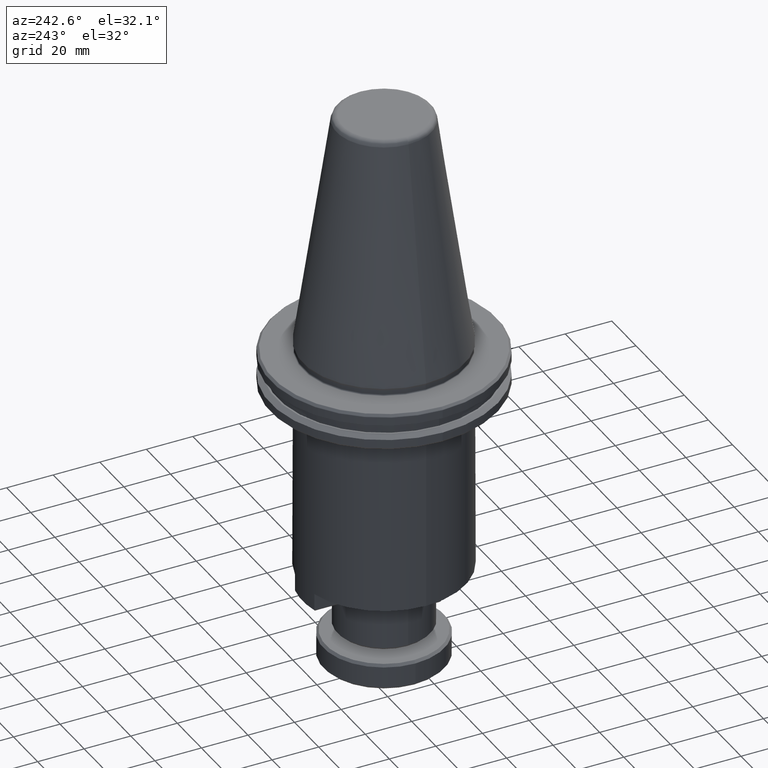
[diagram: clean part render]
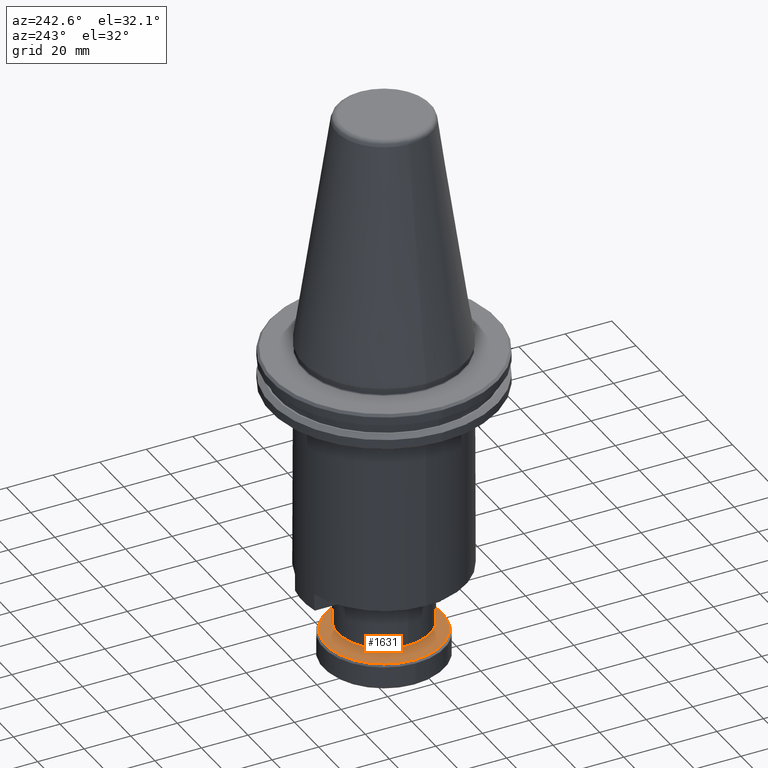
[diagram: same view with one face highlighted and labeled with its STEP entity id]
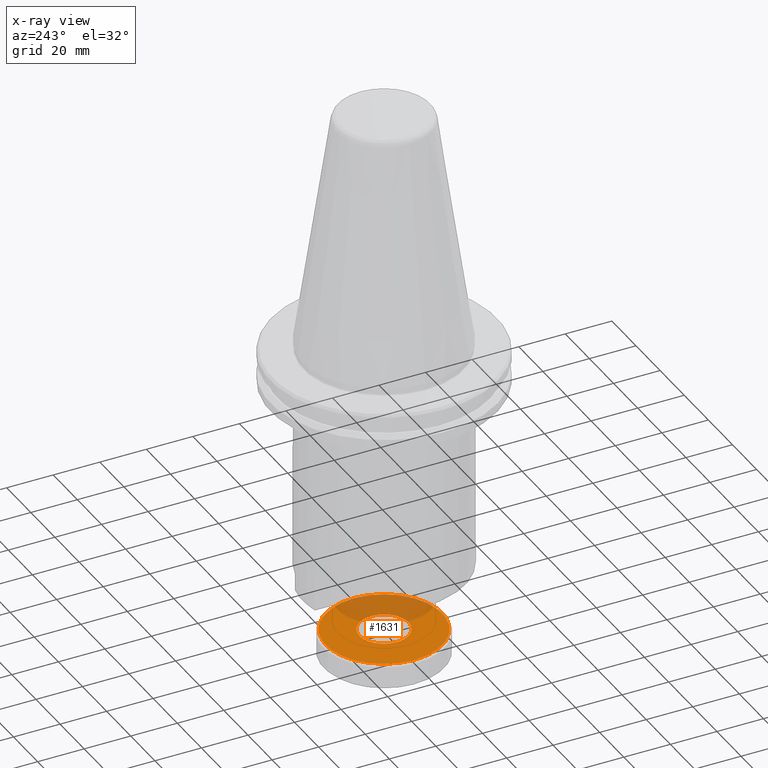
[diagram: x-ray of the same camera — body ghosted, the highlighted face saturated]
A machine part, auxiliary view. The second image highlights one B-rep face of the part: STEP entity #1631.
The next image is the same camera in x-ray: the body ghosted, the highlighted face saturated — about 31% of this face is hidden behind the body in this view.
In plain terms, the highlighted planar face has unit normal (0, -0, 1).
Its self-contained STEP definition (entity closure, byte-faithful):
#10 = CARTESIAN_POINT ( 'NONE',  ( 132.5670917634624300, 188.7340346049920500, 93.80027880913705500 ) ) ;
#17 = CARTESIAN_POINT ( 'NONE',  ( 131.7851603993132700, 185.8960339209853300, 93.80027880913706900 ) ) ;
#26 = CARTESIAN_POINT ( 'NONE',  ( 127.9728231293545900, 181.3508543973077300, 93.80027880913704100 ) ) ;
#35 = CARTESIAN_POINT ( 'NONE',  ( 124.1471866687187200, 179.7818918501898800, 93.80027880913706900 ) ) ;
#44 = CARTESIAN_POINT ( 'NONE',  ( 111.6529126039459900, 190.0907862128019900, 93.80027880913705500 ) ) ;
#45 = CARTESIAN_POINT ( 'NONE',  ( 119.9076262888059700, 179.8279946984150400, 93.80027880913708300 ) ) ;
#53 = CARTESIAN_POINT ( 'NONE',  ( 112.3590346912105000, 193.8765141554528100, 93.80027880913704100 ) ) ;
#55 = CARTESIAN_POINT ( 'NONE',  ( 115.8007729091927700, 181.6987651428799500, 93.80027880913709700 ) ) ;
#61 = CARTESIAN_POINT ( 'NONE',  ( 112.4230557130633200, 186.1434040488217400, 93.80027880913704100 ) ) ;
#67 = DIRECTION ( 'NONE',  ( -1.000000000000000000, 0.0000000000000000000, 0.0000000000000000000 ) ) ;
#71 = CARTESIAN_POINT ( 'NONE',  ( 118.2483618740684500, 199.8379011535458900, 93.80027880913705500 ) ) ;
#80 = CARTESIAN_POINT ( 'NONE',  ( 123.5095492070362900, 200.5049866482320300, 93.80027880913704100 ) ) ;
#91 = CARTESIAN_POINT ( 'NONE',  ( 126.3476648957579700, 199.7230340081719400, 93.80027880913706900 ) ) ;
#117 = EDGE_LOOP ( 'NONE', ( #362, #1472 ) ) ;
#131 = CARTESIAN_POINT ( 'NONE',  ( 130.7384135064480700, 196.1362864048623500, 93.80027880913705500 ) ) ;
#136 = CARTESIAN_POINT ( 'NONE',  ( 132.4198975547436100, 192.2935174888431800, 93.80027880913708300 ) ) ;
#183 = CIRCLE ( 'NONE', #1662, 25.00000000000000700 ) ;
#233 = CARTESIAN_POINT ( 'NONE',  ( 122.1529126039459900, 190.0907862128019900, 93.80027880913705500 ) ) ;
#235 = CARTESIAN_POINT ( 'NONE',  ( 132.5023837627254600, 188.3184266852603100, 93.80027880913701200 ) ) ;
#244 = CARTESIAN_POINT ( 'NONE',  ( 131.2673570372138000, 184.8722213233885700, 93.80027880913702600 ) ) ;
#253 = CARTESIAN_POINT ( 'NONE',  ( 127.1440697154197200, 180.8408954422253300, 93.80027880913706900 ) ) ;
#260 = CARTESIAN_POINT ( 'NONE',  ( 124.0832483014473100, 179.7697307808335000, 93.80027880913705500 ) ) ;
#272 = CARTESIAN_POINT ( 'NONE',  ( 111.7387334444295400, 191.4475378206141400, 93.80027880913705500 ) ) ;
#273 = CARTESIAN_POINT ( 'NONE',  ( 118.8462075310167200, 180.1224542646534700, 93.80027880913706900 ) ) ;
#282 = CARTESIAN_POINT ( 'NONE',  ( 112.5206648085718200, 194.2855385046074200, 93.80027880913708300 ) ) ;
#284 = CARTESIAN_POINT ( 'NONE',  ( 114.4721229390297000, 182.9223071996721000, 93.80027880913709700 ) ) ;
#293 = CARTESIAN_POINT ( 'NONE',  ( 112.2648376795013400, 186.5422419982162100, 93.80027880913706900 ) ) ;
#302 = CARTESIAN_POINT ( 'NONE',  ( 119.0860038662458500, 200.1430756106226200, 93.80027880913705500 ) ) ;
#313 = CARTESIAN_POINT ( 'NONE',  ( 123.9252361925126800, 200.4402640203045100, 93.80027880913704100 ) ) ;
#324 = CARTESIAN_POINT ( 'NONE',  ( 127.3714774933532300, 199.2052306460732300, 93.80027880913705500 ) ) ;
#360 = EDGE_CURVE ( 'NONE', #406, #1312, #492, .T. ) ;
#362 = ORIENTED_EDGE ( 'NONE', *, *, #1710, .F. ) ;
#368 = CARTESIAN_POINT ( 'NONE',  ( 130.8928444194403400, 195.9106967382108500, 93.80027880913702600 ) ) ;
#381 = CARTESIAN_POINT ( 'NONE',  ( 132.4618069665581300, 192.0850602775751100, 93.80027880913705500 ) ) ;
#406 = VERTEX_POINT ( 'NONE', #2728 ) ;
#471 = CARTESIAN_POINT ( 'NONE',  ( 132.4848658119088000, 188.2196596984244600, 93.80027880913706900 ) ) ;
#478 = CARTESIAN_POINT ( 'NONE',  ( 131.0374926080606300, 184.4941657868254800, 93.80027880913708300 ) ) ;
#490 = CARTESIAN_POINT ( 'NONE',  ( 126.3049007854247200, 180.4458301279385400, 93.80027880913705500 ) ) ;
#492 = B_SPLINE_CURVE_WITH_KNOTS ( 'NONE', 3,
 ( #44, #1177, #2585, #272, #1883, #506, #2118, #725, #2354, #962, #2592, #1187, #2815, #1430, #53, #1666, #282, #1896, #514, #2128, #733, #2366, #969, #2602, #1199, #2822, #1250, #527, #2136, #742, #2373, #981, #2610, #1206, #2831, #1447, #71, #1686, #302, #1913, #536, #2152, #748, #2383, #989, #2624, #1216, #2841, #1459, #80, #1693, #313, #1925, #546, #2159, #762, #2394, #996, #2631, #1225, #2850, #1465, #91, #1701, #324, #1936, #551, #2172, #770, #2670, #1263, #2891, #1509, #131, #1740, #368, #1977, #594, #2215, #818, #2452, #1048, #2676, #1274, #2901, #1523, #136, #1750, #381, #1989, #643, #2270, #876, #2504 ),
 .UNSPECIFIED., .F., .F.,
 ( 4, 1, 1, 1, 1, 2, 2, 1, 1, 1, 2, 2, 1, 1, 2, 2, 2, 1, 1, 2, 2, 1, 1, 1, 2, 2, 1, 1, 1, 1, 2, 2, 2, 1, 1, 1, 1, 2, 2, 1, 1, 1, 2, 2, 1, 1, 2, 2, 2, 1, 1, 2, 2, 1, 1, 1, 2, 2, 1, 1, 1, 1, 2, 2, 4 ),
 ( 0.0000000000000000000, 0.03124999999997498500, 0.04687499999996112800, 0.05468749999995285000, 0.05859374999994882600, 0.06054687499994813900, 0.06249999999994745900, 0.09374999999994063100, 0.1093749999999384500, 0.1171874999999371600, 0.1210937499999365100, 0.1249999999999358600, 0.1562499999999384100, 0.1718749999999383000, 0.1796874999999382700, 0.1874999999999382200, 0.2499999999999431000, 0.2812499999999455400, 0.2968749999999475400, 0.3046874999999473200, 0.3124999999999471500, 0.3437499999999457100, 0.3593749999999449900, 0.3671874999999440400, 0.3710937499999431000, 0.3749999999999421000, 0.4062499999999313300, 0.4218749999999255600, 0.4296874999999232800, 0.4335937499999227800, 0.4355468749999228400, 0.4374999999999229500, 0.4999999999999380500, 0.5312499999999456000, 0.5468749999999484900, 0.5546874999999493700, 0.5585937499999498200, 0.5605468749999501500, 0.5624999999999506000, 0.5937499999999704700, 0.6093749999999812400, 0.6171874999999854600, 0.6210937499999863400, 0.6249999999999872300, 0.6562499999999889000, 0.6718749999999909000, 0.6796874999999913400, 0.6874999999999919000, 0.7499999999999829000, 0.7812499999999784600, 0.7968749999999745800, 0.8046874999999725800, 0.8124999999999706900, 0.8437499999999649200, 0.8593749999999630300, 0.8671874999999621400, 0.8710937499999600300, 0.8749999999999580300, 0.9062499999999629200, 0.9218749999999637000, 0.9296874999999644700, 0.9335937499999651400, 0.9355468749999656900, 0.9374999999999662500, 1.000000000000000000 ),
 .UNSPECIFIED. ) ;
#498 = CARTESIAN_POINT ( 'NONE',  ( 122.7947911361733900, 179.5908186332428000, 93.80027880913706900 ) ) ;
#506 = CARTESIAN_POINT ( 'NONE',  ( 111.8034414451665300, 191.8631457403442100, 93.80027880913705500 ) ) ;
#507 = CARTESIAN_POINT ( 'NONE',  ( 118.4466607908708800, 180.2665514550625700, 93.80027880913706900 ) ) ;
#514 = CARTESIAN_POINT ( 'NONE',  ( 113.0384681706691800, 195.3093511022007100, 93.80027880913705500 ) ) ;
#516 = CARTESIAN_POINT ( 'NONE',  ( 113.7243610416904700, 183.8243222923789500, 93.80027880913704100 ) ) ;
#527 = CARTESIAN_POINT ( 'NONE',  ( 116.1074124118896300, 198.6762871153058300, 93.80027880913705500 ) ) ;
#528 = CARTESIAN_POINT ( 'NONE',  ( 111.9505709541060800, 187.5979657469432900, 93.80027880913704100 ) ) ;
#536 = CARTESIAN_POINT ( 'NONE',  ( 119.9501813279008400, 200.3577711635984100, 93.80027880913705500 ) ) ;
#546 = CARTESIAN_POINT ( 'NONE',  ( 124.0240283366310200, 200.4227414153815500, 93.80027880913704100 ) ) ;
#551 = CARTESIAN_POINT ( 'NONE',  ( 127.7495330299203400, 198.9753662169178500, 93.80027880913709700 ) ) ;
#594 = CARTESIAN_POINT ( 'NONE',  ( 131.4028033745218800, 195.0819433242736200, 93.80027880913704100 ) ) ;
#643 = CARTESIAN_POINT ( 'NONE',  ( 132.4739670216611400, 192.0211273896579500, 93.80027880913706900 ) ) ;
#690 = CARTESIAN_POINT ( 'NONE',  ( 132.4157041183326300, 187.8454998976611400, 93.80027880913708300 ) ) ;
#698 = CARTESIAN_POINT ( 'NONE',  ( 130.5449336738537100, 183.7386465180297300, 93.80027880913708300 ) ) ;
#705 = CARTESIAN_POINT ( 'NONE',  ( 126.1002947679262000, 180.3609293219190300, 93.80027880913708300 ) ) ;
#715 = CARTESIAN_POINT ( 'NONE',  ( 121.3524423819561200, 179.6126695488695500, 93.80027880913706900 ) ) ;
#725 = CARTESIAN_POINT ( 'NONE',  ( 111.8209593959831900, 191.9619127271795700, 93.80027880913704100 ) ) ;
#726 = CARTESIAN_POINT ( 'NONE',  ( 118.3291378837229800, 180.3116928809231800, 93.80027880913705500 ) ) ;
#733 = CARTESIAN_POINT ( 'NONE',  ( 113.2683325998281400, 195.6874066387732400, 93.80027880913705500 ) ) ;
#734 = CARTESIAN_POINT ( 'NONE',  ( 113.4645827570057000, 184.1940750235613100, 93.80027880913706900 ) ) ;
#742 = CARTESIAN_POINT ( 'NONE',  ( 116.3330020785386100, 198.8307180282971300, 93.80027880913706900 ) ) ;
#743 = CARTESIAN_POINT ( 'NONE',  ( 111.8562017089406200, 188.0338607951222800, 93.80027880913705500 ) ) ;
#748 = CARTESIAN_POINT ( 'NONE',  ( 120.1586385391716600, 200.3996805754138100, 93.80027880913705500 ) ) ;
#762 = CARTESIAN_POINT ( 'NONE',  ( 124.3981989190868500, 200.3535777271878500, 93.80027880913708300 ) ) ;
#770 = CARTESIAN_POINT ( 'NONE',  ( 128.5050522987091600, 198.4828072827164600, 93.80027880913705500 ) ) ;
#818 = CARTESIAN_POINT ( 'NONE',  ( 131.7978686888091300, 194.2427743942799600, 93.80027880913706900 ) ) ;
#876 = CARTESIAN_POINT ( 'NONE',  ( 132.6529126039461100, 190.7331955307773200, 93.80027880913708300 ) ) ;
#877 = AXIS2_PLACEMENT_3D ( 'NONE', #2937, #2726, #1328 ) ;
#905 = CARTESIAN_POINT ( 'NONE',  ( 132.6529126039459900, 190.0907862128019900, 93.80027880913705500 ) ) ;
#927 = CARTESIAN_POINT ( 'NONE',  ( 132.1212445520941400, 186.7840811398716600, 93.80027880913704100 ) ) ;
#935 = CARTESIAN_POINT ( 'NONE',  ( 129.3213916170726300, 182.4099965478847000, 93.80027880913706900 ) ) ;
#942 = CARTESIAN_POINT ( 'NONE',  ( 125.7014568185157700, 180.2027112883521600, 93.80027880913706900 ) ) ;
#954 = CARTESIAN_POINT ( 'NONE',  ( 120.5190144105115900, 179.7181355810801900, 93.80027880913704100 ) ) ;
#962 = CARTESIAN_POINT ( 'NONE',  ( 111.8901210895579400, 192.3360725279332300, 93.80027880913708300 ) ) ;
#964 = CARTESIAN_POINT ( 'NONE',  ( 117.4757534360550300, 180.6782259784432400, 93.80027880913702600 ) ) ;
#969 = CARTESIAN_POINT ( 'NONE',  ( 113.7608915340413800, 196.4429259075802700, 93.80027880913705500 ) ) ;
#971 = CARTESIAN_POINT ( 'NONE',  ( 113.1703755269452800, 184.6419162617162300, 93.80027880913708300 ) ) ;
#981 = CARTESIAN_POINT ( 'NONE',  ( 117.1617554924638400, 199.3406769833727000, 93.80027880913706900 ) ) ;
#982 = CARTESIAN_POINT ( 'NONE',  ( 111.8360195346584200, 188.1383159672689100, 93.80027880913711200 ) ) ;
#989 = CARTESIAN_POINT ( 'NONE',  ( 120.2225769064444900, 200.4118416447704500, 93.80027880913704100 ) ) ;
#996 = CARTESIAN_POINT ( 'NONE',  ( 125.4596176768763100, 200.0591181609491700, 93.80027880913706900 ) ) ;
#1048 = CARTESIAN_POINT ( 'NONE',  ( 131.8827694948288900, 194.0381683767818400, 93.80027880913708300 ) ) ;
#1100 = PLANE ( 'NONE',  #877 ) ;
#1144 = CARTESIAN_POINT ( 'NONE',  ( 132.6529126039459900, 189.7697593240372400, 93.80027880913704100 ) ) ;
#1155 = CARTESIAN_POINT ( 'NONE',  ( 131.9771473616853000, 186.3845343997264800, 93.80027880913705500 ) ) ;
#1163 = CARTESIAN_POINT ( 'NONE',  ( 128.4193765243647400, 181.6622346505452300, 93.80027880913706900 ) ) ;
#1170 = CARTESIAN_POINT ( 'NONE',  ( 124.6457330697836300, 179.8884445629553300, 93.80027880913706900 ) ) ;
#1177 = CARTESIAN_POINT ( 'NONE',  ( 111.6529126039459800, 190.4118131015684700, 93.80027880913705500 ) ) ;
#1179 = CARTESIAN_POINT ( 'NONE',  ( 120.3213078603373100, 179.7517534561855300, 93.80027880913705500 ) ) ;
#1187 = CARTESIAN_POINT ( 'NONE',  ( 112.1845806557959100, 193.3974912857196400, 93.80027880913705500 ) ) ;
#1188 = CARTESIAN_POINT ( 'NONE',  ( 116.7069028982956000, 181.1130657614084200, 93.80027880913705500 ) ) ;
#1199 = CARTESIAN_POINT ( 'NONE',  ( 114.9844335908242400, 197.7715758777226500, 93.80027880913705500 ) ) ;
#1200 = CARTESIAN_POINT ( 'NONE',  ( 112.6327112762780900, 185.6554396774509100, 93.80027880913706900 ) ) ;
#1206 = CARTESIAN_POINT ( 'NONE',  ( 118.0009244224635300, 199.7357422976628200, 93.80027880913705500 ) ) ;
#1208 = CARTESIAN_POINT ( 'NONE',  ( 111.7113438144879900, 188.8115062113564900, 93.80027880913709700 ) ) ;
#1216 = CARTESIAN_POINT ( 'NONE',  ( 121.5110340717035800, 200.5907537923622800, 93.80027880913705500 ) ) ;
#1225 = CARTESIAN_POINT ( 'NONE',  ( 125.8591644170214700, 199.9150209705408700, 93.80027880913702600 ) ) ;
#1250 = CARTESIAN_POINT ( 'NONE',  ( 115.8864486835336600, 198.5193377750632600, 93.80027880913704100 ) ) ;
#1263 = CARTESIAN_POINT ( 'NONE',  ( 129.8337022688645300, 197.2592652259285700, 93.80027880913708300 ) ) ;
#1274 = CARTESIAN_POINT ( 'NONE',  ( 132.0409875283960400, 193.6393304273733000, 93.80027880913708300 ) ) ;
#1312 = VERTEX_POINT ( 'NONE', #905 ) ;
#1328 = DIRECTION ( 'NONE',  ( 1.000000000000000000, 0.0000000000000000000, -0.0000000000000000000 ) ) ;
#1332 = FACE_BOUND ( 'NONE', #1869, .T. ) ;
#1377 = CARTESIAN_POINT ( 'NONE',  ( 97.15291260394597800, 190.0907862128019900, 93.80027880913705500 ) ) ;
#1379 = CARTESIAN_POINT ( 'NONE',  ( 132.6310008999927000, 189.2901626511726100, 93.80027880913702600 ) ) ;
#1392 = CARTESIAN_POINT ( 'NONE',  ( 131.9320059358250900, 186.2670114925794800, 93.80027880913708300 ) ) ;
#1401 = CARTESIAN_POINT ( 'NONE',  ( 128.0496237931851100, 181.4024563658612700, 93.80027880913704100 ) ) ;
#1412 = CARTESIAN_POINT ( 'NONE',  ( 124.2098380216190800, 179.7940753177944700, 93.80027880913705500 ) ) ;
#1423 = CARTESIAN_POINT ( 'NONE',  ( 120.2632176951692600, 179.7622101660537600, 93.80027880913705500 ) ) ;
#1430 = CARTESIAN_POINT ( 'NONE',  ( 112.3286778462060100, 193.7970380258730400, 93.80027880913705500 ) ) ;
#1431 = CARTESIAN_POINT ( 'NONE',  ( 116.4830148539281100, 181.2527793702718400, 93.80027880913704100 ) ) ;
#1437 = CARTESIAN_POINT ( 'NONE',  ( 112.4567188777184900, 186.0614058399419500, 93.80027880913702600 ) ) ;
#1445 = DIRECTION ( 'NONE',  ( 0.0000000000000000000, 0.0000000000000000000, -1.000000000000000000 ) ) ;
#1447 = CARTESIAN_POINT ( 'NONE',  ( 118.2055304399646500, 199.8206431036841500, 93.80027880913706900 ) ) ;
#1448 = CARTESIAN_POINT ( 'NONE',  ( 111.6529126039459900, 190.0907862128019900, 93.80027880913705500 ) ) ;
#1459 = CARTESIAN_POINT ( 'NONE',  ( 122.9533828259490600, 200.5689028767335200, 93.80027880913704100 ) ) ;
#1465 = CARTESIAN_POINT ( 'NONE',  ( 125.9766873241690800, 199.8698795446807100, 93.80027880913704100 ) ) ;
#1472 = ORIENTED_EDGE ( 'NONE', *, *, #1555, .F. ) ;
#1509 = CARTESIAN_POINT ( 'NONE',  ( 130.5814641662044800, 196.3572501332206200, 93.80027880913705500 ) ) ;
#1523 = CARTESIAN_POINT ( 'NONE',  ( 132.3552542537929400, 192.5836066786414700, 93.80027880913705500 ) ) ;
#1555 = EDGE_CURVE ( 'NONE', #2133, #2653, #1704, .T. ) ;
#1618 = CARTESIAN_POINT ( 'NONE',  ( 132.5255508247177800, 188.4568209332753700, 93.80027880913704100 ) ) ;
#1630 = CARTESIAN_POINT ( 'NONE',  ( 131.5654728383021800, 185.4136270449046700, 93.80027880913705500 ) ) ;
#1631 = ADVANCED_FACE ( 'NONE', ( #1332, #1960 ), #1100, .T. ) ;
#1638 = CARTESIAN_POINT ( 'NONE',  ( 127.6017825550316000, 181.1082491358000100, 93.80027880913706900 ) ) ;
#1651 = CARTESIAN_POINT ( 'NONE',  ( 124.1053828494771400, 179.7738931435137600, 93.80027880913709700 ) ) ;
#1658 = CARTESIAN_POINT ( 'NONE',  ( 119.4123227901875300, 179.9446719898076900, 93.80027880913704100 ) ) ;
#1662 = AXIS2_PLACEMENT_3D ( 'NONE', #2828, #1445, #67 ) ;
#1666 = CARTESIAN_POINT ( 'NONE',  ( 112.3738192720677900, 193.9145609330259400, 93.80027880913705500 ) ) ;
#1667 = CARTESIAN_POINT ( 'NONE',  ( 115.2406283264024000, 182.1538806316855200, 93.80027880913708300 ) ) ;
#1677 = CARTESIAN_POINT ( 'NONE',  ( 112.4057976632016000, 186.1862354829255300, 93.80027880913704100 ) ) ;
#1686 = CARTESIAN_POINT ( 'NONE',  ( 118.6043683893695100, 199.9788611372505900, 93.80027880913708300 ) ) ;
#1693 = CARTESIAN_POINT ( 'NONE',  ( 123.7868107973861400, 200.4634368445233000, 93.80027880913705500 ) ) ;
#1701 = CARTESIAN_POINT ( 'NONE',  ( 126.8300717718351100, 199.5033464471627000, 93.80027880913706900 ) ) ;
#1704 = CIRCLE ( 'NONE', #2651, 25.00000000000000700 ) ;
#1710 = EDGE_CURVE ( 'NONE', #2653, #2133, #183, .T. ) ;
#1740 = CARTESIAN_POINT ( 'NONE',  ( 130.8412424508873100, 195.9874974020411000, 93.80027880913708300 ) ) ;
#1750 = CARTESIAN_POINT ( 'NONE',  ( 132.4496234989536600, 192.1477116304757800, 93.80027880913706900 ) ) ;
#1845 = CARTESIAN_POINT ( 'NONE',  ( 132.4919414663102900, 188.2591604192205100, 93.80027880913705500 ) ) ;
#1857 = CARTESIAN_POINT ( 'NONE',  ( 131.1306330553383400, 184.6447765071484900, 93.80027880913705500 ) ) ;
#1862 = CARTESIAN_POINT ( 'NONE',  ( 126.5882591392968100, 180.5705848851322900, 93.80027880913704100 ) ) ;
#1869 = EDGE_LOOP ( 'NONE', ( #2231, #2038 ) ) ;
#1874 = CARTESIAN_POINT ( 'NONE',  ( 123.4323679447115300, 179.6492498794502200, 93.80027880913708300 ) ) ;
#1883 = CARTESIAN_POINT ( 'NONE',  ( 111.7802743831742600, 191.7247514923299100, 93.80027880913705500 ) ) ;
#1884 = CARTESIAN_POINT ( 'NONE',  ( 118.5660846070689600, 180.2217600941315300, 93.80027880913705500 ) ) ;
#1896 = CARTESIAN_POINT ( 'NONE',  ( 112.7403523695778100, 194.7679453806797500, 93.80027880913704100 ) ) ;
#1897 = CARTESIAN_POINT ( 'NONE',  ( 114.1095176340194300, 183.3242786906581600, 93.80027880913705500 ) ) ;
#1904 = CARTESIAN_POINT ( 'NONE',  ( 112.1006232061321800, 187.0238774750855300, 93.80027880913704100 ) ) ;
#1913 = CARTESIAN_POINT ( 'NONE',  ( 119.6600921380995600, 200.2931278626470000, 93.80027880913705500 ) ) ;
#1925 = CARTESIAN_POINT ( 'NONE',  ( 123.9845173475565300, 200.4298189694183900, 93.80027880913706900 ) ) ;
#1936 = CARTESIAN_POINT ( 'NONE',  ( 127.5989223095955200, 199.0685066641965800, 93.80027880913705500 ) ) ;
#1960 = FACE_OUTER_BOUND ( 'NONE', #117, .T. ) ;
#1977 = CARTESIAN_POINT ( 'NONE',  ( 131.1354496809476300, 195.5396561638864600, 93.80027880913708300 ) ) ;
#1989 = CARTESIAN_POINT ( 'NONE',  ( 132.4698056732343000, 192.0432564583333000, 93.80027880913706900 ) ) ;
#2038 = ORIENTED_EDGE ( 'NONE', *, *, #2899, .T. ) ;
#2082 = DIRECTION ( 'NONE',  ( 0.0000000000000000000, 0.0000000000000000000, -1.000000000000000000 ) ) ;
#2084 = CARTESIAN_POINT ( 'NONE',  ( 132.4814886506942500, 188.2010913040253100, 93.80027880913705500 ) ) ;
#2093 = CARTESIAN_POINT ( 'NONE',  ( 130.9909194464778700, 184.4208884627865400, 93.80027880913705500 ) ) ;
#2101 = CARTESIAN_POINT ( 'NONE',  ( 126.1822929768059700, 180.3945924865739100, 93.80027880913706900 ) ) ;
#2112 = CARTESIAN_POINT ( 'NONE',  ( 121.8319733378323400, 179.5907700025816200, 93.80027880913708300 ) ) ;
#2118 = CARTESIAN_POINT ( 'NONE',  ( 111.8138837415817100, 191.9224120063838900, 93.80027880913706900 ) ) ;
#2120 = CARTESIAN_POINT ( 'NONE',  ( 118.3671846612929400, 180.2969083000668000, 93.80027880913704100 ) ) ;
#2128 = CARTESIAN_POINT ( 'NONE',  ( 113.1751921525478700, 195.5367959184459900, 93.80027880913705500 ) ) ;
#2129 = CARTESIAN_POINT ( 'NONE',  ( 113.5674117014457600, 184.0452860207387600, 93.80027880913705500 ) ) ;
#2133 = VERTEX_POINT ( 'NONE', #2370 ) ;
#2136 = CARTESIAN_POINT ( 'NONE',  ( 116.2562014147091500, 198.7791160597443000, 93.80027880913709700 ) ) ;
#2137 = CARTESIAN_POINT ( 'NONE',  ( 111.8859276531525400, 187.8880549367497400, 93.80027880913706900 ) ) ;
#2152 = CARTESIAN_POINT ( 'NONE',  ( 120.0959871862701400, 200.3874971078089700, 93.80027880913706900 ) ) ;
#2159 = CARTESIAN_POINT ( 'NONE',  ( 124.0426075127227000, 200.4193622595502700, 93.80027880913702600 ) ) ;
#2172 = CARTESIAN_POINT ( 'NONE',  ( 127.8228103539626500, 198.9287930553330500, 93.80027880913705500 ) ) ;
#2215 = CARTESIAN_POINT ( 'NONE',  ( 131.6731139316150900, 194.5261327481513500, 93.80027880913706900 ) ) ;
#2231 = ORIENTED_EDGE ( 'NONE', *, *, #360, .T. ) ;
#2270 = CARTESIAN_POINT ( 'NONE',  ( 132.5944813934040100, 191.3700662142198600, 93.80027880913708300 ) ) ;
#2322 = CARTESIAN_POINT ( 'NONE',  ( 132.2990268269398100, 187.3501963990421200, 93.80027880913705500 ) ) ;
#2328 = CARTESIAN_POINT ( 'NONE',  ( 130.0898181850689900, 183.1785019352601900, 93.80027880913705500 ) ) ;
#2337 = CARTESIAN_POINT ( 'NONE',  ( 126.0574633338244400, 180.3436712720582900, 93.80027880913705500 ) ) ;
#2349 = CARTESIAN_POINT ( 'NONE',  ( 120.7962760008656200, 179.6765857773712600, 93.80027880913704100 ) ) ;
#2354 = CARTESIAN_POINT ( 'NONE',  ( 111.8243365571978400, 191.9804811215792600, 93.80027880913704100 ) ) ;
#2355 = CARTESIAN_POINT ( 'NONE',  ( 117.9581603121330500, 180.4585384174332000, 93.80027880913705500 ) ) ;
#2366 = CARTESIAN_POINT ( 'NONE',  ( 113.3149057614137500, 195.7606839628166400, 93.80027880913702600 ) ) ;
#2367 = CARTESIAN_POINT ( 'NONE',  ( 113.4129807884513900, 184.2708756873933900, 93.80027880913705500 ) ) ;
#2370 = CARTESIAN_POINT ( 'NONE',  ( 147.1529126039459900, 190.0907862128019900, 93.80027880913705500 ) ) ;
#2373 = CARTESIAN_POINT ( 'NONE',  ( 116.7040426528556300, 199.0733232898006400, 93.80027880913708300 ) ) ;
#2374 = CARTESIAN_POINT ( 'NONE',  ( 111.8440182413351600, 188.0965121480254300, 93.80027880913705500 ) ) ;
#2383 = CARTESIAN_POINT ( 'NONE',  ( 120.2004423584140100, 200.4076792820901300, 93.80027880913706900 ) ) ;
#2394 = CARTESIAN_POINT ( 'NONE',  ( 124.8935024177058600, 200.2369004357944400, 93.80027880913705500 ) ) ;
#2452 = CARTESIAN_POINT ( 'NONE',  ( 131.8491063301739000, 194.1201665856613100, 93.80027880913702600 ) ) ;
#2481 = B_SPLINE_CURVE_WITH_KNOTS ( 'NONE', 3,
 ( #2548, #1144, #1379, #10, #1618, #235, #1845, #471, #2084, #690, #2322, #927, #2559, #1155, #2782, #1392, #17, #1630, #244, #1857, #478, #2093, #698, #2328, #935, #2568, #1163, #2789, #1401, #26, #1638, #253, #1862, #490, #2101, #705, #2337, #942, #2575, #1170, #2801, #1412, #35, #1651, #260, #1874, #498, #2112, #715, #2349, #954, #2586, #1179, #2809, #1423, #45, #1658, #273, #1884, #507, #2120, #726, #2355, #964, #2594, #1188, #2816, #1431, #55, #1667, #284, #1897, #516, #2129, #734, #2367, #971, #2604, #1200, #2823, #1437, #61, #1677, #293, #1904, #528, #2137, #743, #2374, #982, #2612, #1208, #2833, #1448 ),
 .UNSPECIFIED., .F., .F.,
 ( 4, 1, 1, 1, 1, 2, 2, 1, 1, 1, 2, 2, 1, 1, 2, 2, 2, 1, 1, 2, 2, 1, 1, 1, 2, 2, 1, 1, 1, 1, 2, 2, 2, 1, 1, 1, 1, 2, 2, 1, 1, 1, 2, 2, 1, 1, 2, 2, 2, 1, 1, 2, 2, 1, 1, 1, 2, 2, 1, 1, 1, 1, 2, 2, 4 ),
 ( 0.0000000000000000000, 0.03124999999997400000, 0.04687499999996222500, 0.05468749999995749900, 0.05859374999995513300, 0.06054687499995505000, 0.06249999999995496700, 0.09374999999994958200, 0.1093749999999484900, 0.1171874999999495400, 0.1210937499999484400, 0.1249999999999473500, 0.1562499999999535400, 0.1718749999999555400, 0.1796874999999548700, 0.1874999999999541800, 0.2499999999999347200, 0.2812499999999241700, 0.2968749999999186800, 0.3046874999999159600, 0.3124999999999132400, 0.3437499999998989700, 0.3593749999998929200, 0.3671874999998898700, 0.3710937499998883100, 0.3749999999998867600, 0.4062499999998760400, 0.4218749999998710500, 0.4296874999998676100, 0.4335937499998650000, 0.4355468749998637200, 0.4374999999998624400, 0.4999999999998568900, 0.5312499999998541200, 0.5468749999998533400, 0.5546874999998522300, 0.5585937499998519000, 0.5605468749998519000, 0.5624999999998520100, 0.5937499999998600000, 0.6093749999998636600, 0.6171874999998655500, 0.6210937499998666600, 0.6249999999998676600, 0.6562499999998826500, 0.6718749999998902000, 0.6796874999998938600, 0.6874999999998976400, 0.7499999999999224000, 0.7812499999999339400, 0.7968749999999388300, 0.8046874999999409400, 0.8124999999999429300, 0.8437499999999491500, 0.8593749999999531500, 0.8671874999999548100, 0.8710937499999557000, 0.8749999999999565900, 0.9062499999999582600, 0.9218749999999577000, 0.9296874999999585900, 0.9335937499999590300, 0.9355468749999603700, 0.9374999999999617000, 1.000000000000000000 ),
 .UNSPECIFIED. ) ;
#2504 = CARTESIAN_POINT ( 'NONE',  ( 132.6529126039459900, 190.0907862128019900, 93.80027880913705500 ) ) ;
#2548 = CARTESIAN_POINT ( 'NONE',  ( 132.6529126039459900, 190.0907862128019900, 93.80027880913705500 ) ) ;
#2559 = CARTESIAN_POINT ( 'NONE',  ( 132.0219387226162000, 186.5039582159243400, 93.80027880913702600 ) ) ;
#2568 = CARTESIAN_POINT ( 'NONE',  ( 128.9194201260842200, 182.0473912428736900, 93.80027880913705500 ) ) ;
#2575 = CARTESIAN_POINT ( 'NONE',  ( 125.2198213416343200, 180.0384968149791100, 93.80027880913705500 ) ) ;
#2585 = CARTESIAN_POINT ( 'NONE',  ( 111.6748243078992400, 190.8914097744342900, 93.80027880913706900 ) ) ;
#2586 = CARTESIAN_POINT ( 'NONE',  ( 120.3805890153824000, 179.7413084052992100, 93.80027880913704100 ) ) ;
#2592 = CARTESIAN_POINT ( 'NONE',  ( 112.0067983809496200, 192.8313760265449700, 93.80027880913705500 ) ) ;
#2594 = CARTESIAN_POINT ( 'NONE',  ( 116.9343477145374100, 180.9763417795322800, 93.80027880913705500 ) ) ;
#2602 = CARTESIAN_POINT ( 'NONE',  ( 114.2160070228131900, 197.0030704903368800, 93.80027880913702600 ) ) ;
#2604 = CARTESIAN_POINT ( 'NONE',  ( 112.9030218333716700, 185.0996291013279100, 93.80027880913706900 ) ) ;
#2610 = CARTESIAN_POINT ( 'NONE',  ( 117.7175660685887900, 199.6109875404671100, 93.80027880913702600 ) ) ;
#2612 = CARTESIAN_POINT ( 'NONE',  ( 111.8318581862308200, 188.1604450359468800, 93.80027880913704100 ) ) ;
#2624 = CARTESIAN_POINT ( 'NONE',  ( 120.8734572631859800, 200.5323225461548300, 93.80027880913706900 ) ) ;
#2631 = CARTESIAN_POINT ( 'NONE',  ( 125.7397406008236200, 199.9598123314716800, 93.80027880913705500 ) ) ;
#2651 = AXIS2_PLACEMENT_3D ( 'NONE', #233, #2082, #2692 ) ;
#2653 = VERTEX_POINT ( 'NONE', #1377 ) ;
#2670 = CARTESIAN_POINT ( 'NONE',  ( 129.0651968814851500, 198.0276917939251900, 93.80027880913702600 ) ) ;
#2676 = CARTESIAN_POINT ( 'NONE',  ( 131.9000275446897500, 193.9953369426801300, 93.80027880913704100 ) ) ;
#2692 = DIRECTION ( 'NONE',  ( -1.000000000000000000, 0.0000000000000000000, 0.0000000000000000000 ) ) ;
#2726 = DIRECTION ( 'NONE',  ( 0.0000000000000000000, -0.0000000000000000000, 1.000000000000000000 ) ) ;
#2728 = CARTESIAN_POINT ( 'NONE',  ( 111.6529126039459900, 190.0907862128019900, 93.80027880913705500 ) ) ;
#2782 = CARTESIAN_POINT ( 'NONE',  ( 131.9467905166810900, 186.3050582701488300, 93.80027880913709700 ) ) ;
#2789 = CARTESIAN_POINT ( 'NONE',  ( 128.1984127960064900, 181.5052853103009900, 93.80027880913705500 ) ) ;
#2801 = CARTESIAN_POINT ( 'NONE',  ( 124.3556438799859600, 179.8238012620045700, 93.80027880913705500 ) ) ;
#2809 = CARTESIAN_POINT ( 'NONE',  ( 120.2817968712619000, 179.7588310102223400, 93.80027880913704100 ) ) ;
#2815 = CARTESIAN_POINT ( 'NONE',  ( 112.2838864852746200, 193.6776142096722700, 93.80027880913705500 ) ) ;
#2816 = CARTESIAN_POINT ( 'NONE',  ( 116.5562921779711600, 181.2062062086866700, 93.80027880913709700 ) ) ;
#2822 = CARTESIAN_POINT ( 'NONE',  ( 115.3864050818163300, 198.1341811827361700, 93.80027880913708300 ) ) ;
#2823 = CARTESIAN_POINT ( 'NONE',  ( 112.5079565190835400, 185.9387980313230200, 93.80027880913705500 ) ) ;
#2828 = CARTESIAN_POINT ( 'NONE',  ( 122.1529126039459900, 190.0907862128019900, 93.80027880913705500 ) ) ;
#2831 = CARTESIAN_POINT ( 'NONE',  ( 118.1235322310838600, 199.7869799390285600, 93.80027880913705500 ) ) ;
#2833 = CARTESIAN_POINT ( 'NONE',  ( 111.6529126039459900, 189.4483768947990000, 93.80027880913705500 ) ) ;
#2841 = CARTESIAN_POINT ( 'NONE',  ( 122.4738518700672500, 200.5908024230219300, 93.80027880913706900 ) ) ;
#2850 = CARTESIAN_POINT ( 'NONE',  ( 125.9386405465991500, 199.8846641255369100, 93.80027880913702600 ) ) ;
#2891 = CARTESIAN_POINT ( 'NONE',  ( 130.1963075738764200, 196.8572937349399000, 93.80027880913701200 ) ) ;
#2899 = EDGE_CURVE ( 'NONE', #1312, #406, #2481, .T. ) ;
#2901 = CARTESIAN_POINT ( 'NONE',  ( 132.2052020017692700, 193.1576949504929500, 93.80027880913705500 ) ) ;
#2937 = CARTESIAN_POINT ( 'NONE',  ( 147.1529126039459900, 190.0907862128019900, 93.80027880913705500 ) ) ;